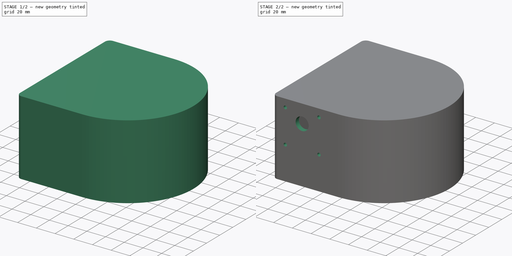
[diagram: build sequence overview — one tinted view per stage of 2, left to right]
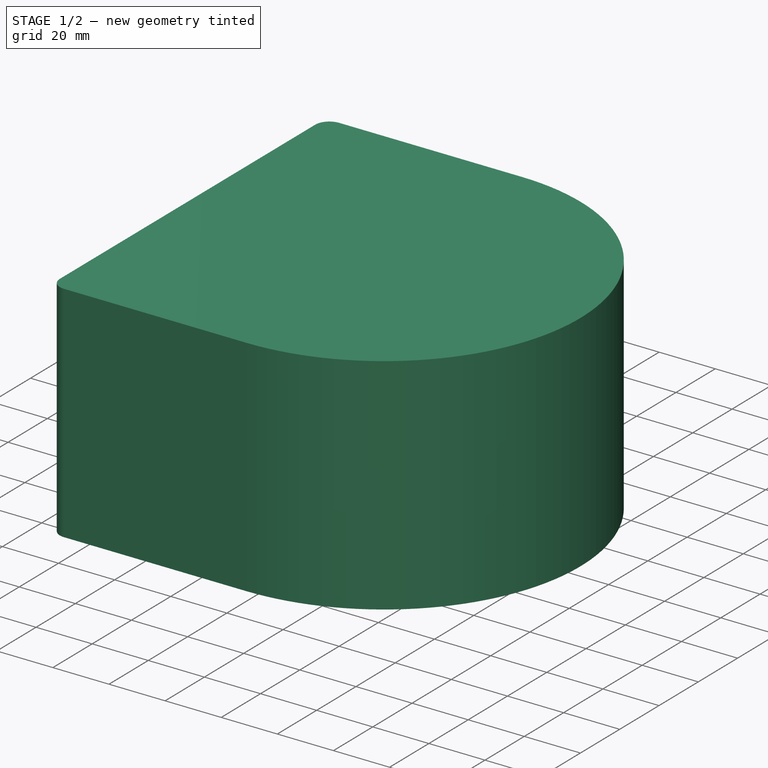
[diagram: stage 1 of 2 — iso view after this stage's code; geometry added in this stage tinted green]
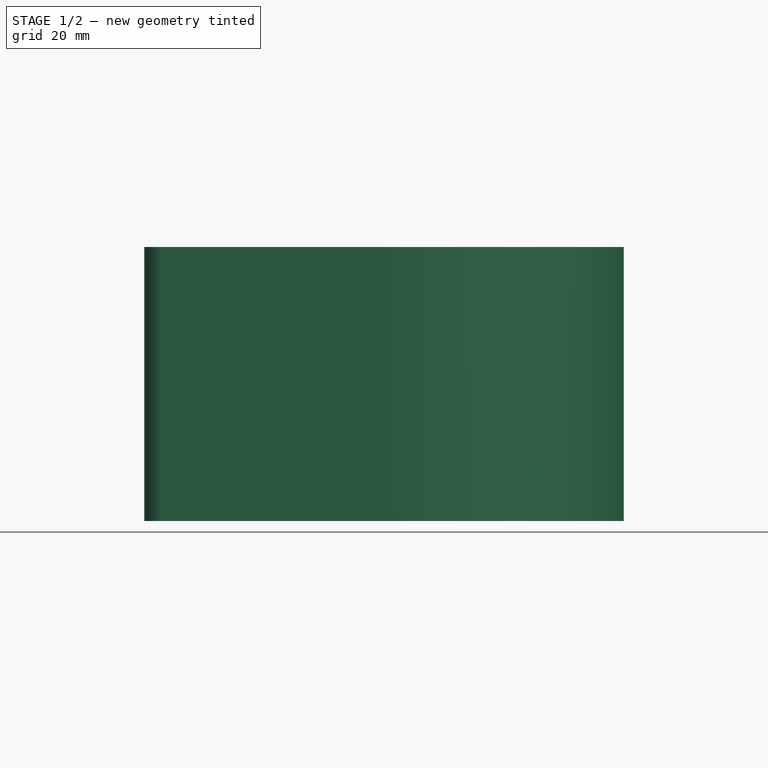
[diagram: stage 1 of 2 — front view after this stage's code; geometry added in this stage tinted green]
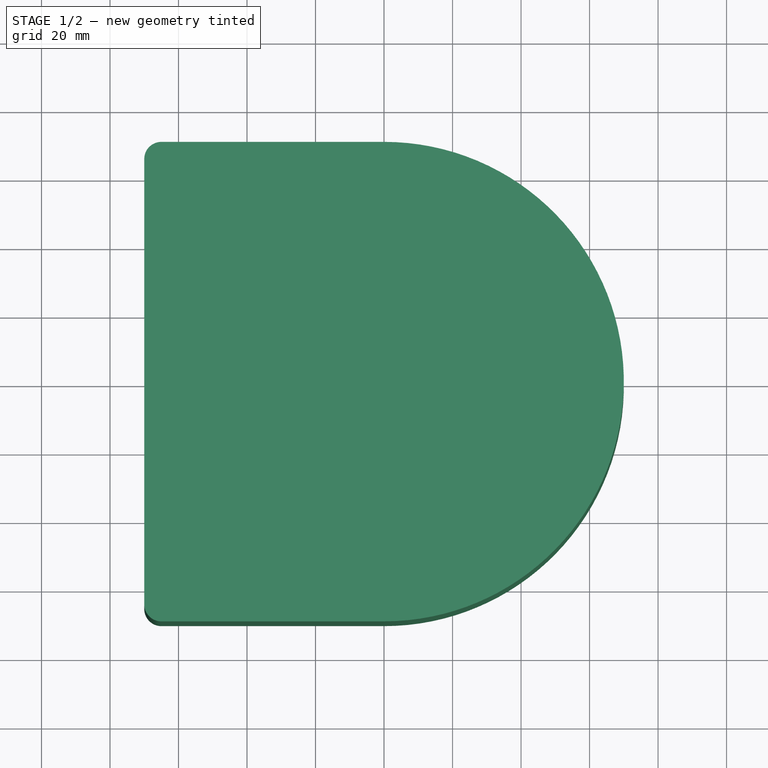
[diagram: stage 1 of 2 — top view after this stage's code; geometry added in this stage tinted green]
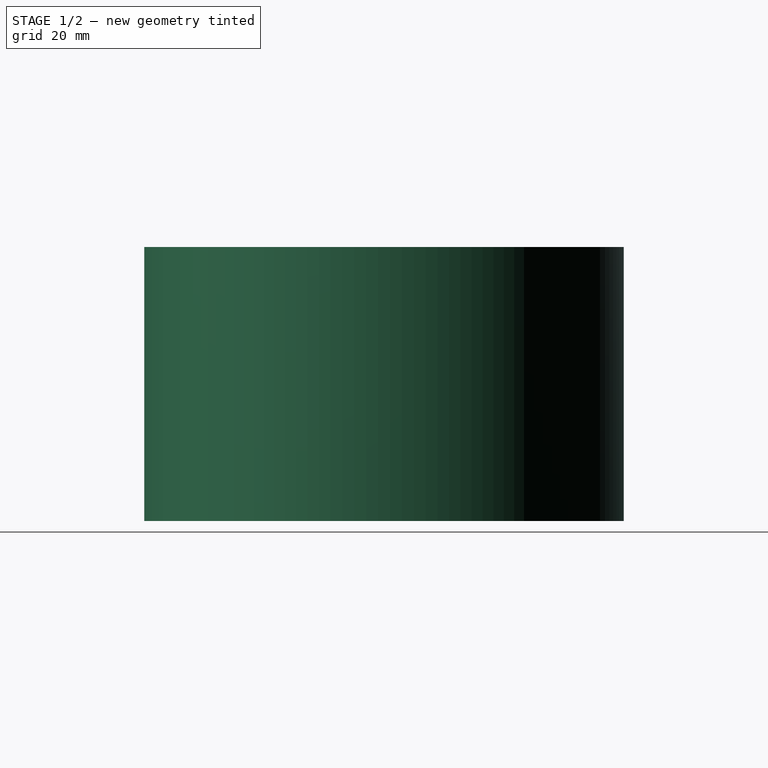
[diagram: stage 1 of 2 — right view after this stage's code; geometry added in this stage tinted green]
FCSTD DOCUMENT  (FreeCAD 0.18R16131 (Git))
Label: Frame
License: All rights reserved
LicenseURL: http://en.wikipedia.org/wiki/All_rights_reserved
objects: Sketcher::SketchObject×3, PartDesign::Pocket×2, PartDesign::Pad×1, PartDesign::Body×1
note: 10 computed .brp shape members not serialized (recipe doc carries the construction recipe); baked Part::Feature solids carry a one-line shape summary decoded from their .brp

FEATURE [Sketcher::SketchObject] Sketch
  MapMode = 5
  Support = -> [XY_Plane]
  sketch-geometry (6):
    g0: LineSegment StartX=-1.29e-14 StartY=70 StartZ=0 EndX=-65 EndY=70 EndZ=0
    g1: LineSegment StartX=-70 StartY=65 StartZ=0 EndX=-70 EndY=-65 EndZ=0
    g2: LineSegment StartX=-65 StartY=-70 StartZ=0 EndX=-1.42e-14 EndY=-70 EndZ=0
    g3: ArcOfCircle CenterX=-1.29e-14 CenterY=0 CenterZ=0 NormalX=0 NormalY=0 NormalZ=1 AngleXU=0 Radius=70 StartAngle=4.71239 EndAngle=7.85398
    g4: ArcOfCircle CenterX=-65 CenterY=65 CenterZ=0 NormalX=0 NormalY=0 NormalZ=1 AngleXU=0 Radius=5 StartAngle=1.5708 EndAngle=3.14159
    g5: ArcOfCircle CenterX=-65 CenterY=-65 CenterZ=0 NormalX=0 NormalY=0 NormalZ=1 AngleXU=0 Radius=5 StartAngle=3.14159 EndAngle=4.71239
  constraints (16):
    c: Vertical(g3,g3)
    c: Coincident(g3,g-1)
    c: Radius(g3) = 70
    c: Coincident(g2,g3)
    c: Coincident(g0,g3)
    c: Tangent(g0,g4) = -1.5708
    c: Tangent(g1,g4) = -1.5708
    c: Tangent(g1,g5) = -1.5708
    c: Tangent(g2,g5) = -1.5708
    c: DistanceX(g2,g2) = 65
    c: Vertical(g3,g2)
    c: DistanceX(g0,g0) = 65
    c: DistanceX(g1,g0) = 70
    c: Horizontal(g0,g0)
    c: Vertical(g1,g1)
    c: Horizontal(g2,g2)
FEATURE [PartDesign::Pad] Pad
  Length = 80
  Length2 = 100
  Profile = -> Sketch
  Type = 0
FEATURE [Sketcher::SketchObject] Sketch001
  ExternalGeometry = -> [Pad]
  MapMode = 5
  Placement = pos=(0,0,0) rot=(1,0,0;3.14159rad)
  Support = -> [Pad]
  sketch-geometry (6):
    g0: ArcOfCircle CenterX=5.91336e-05 CenterY=-5.4e-15 CenterZ=0 NormalX=0 NormalY=0 NormalZ=1 AngleXU=0 Radius=65 StartAngle=4.71239 EndAngle=7.85398
    g1: LineSegment StartX=-6.58657e-08 StartY=65 StartZ=0 EndX=-60 EndY=65 EndZ=0
    g2: LineSegment StartX=-65 StartY=60 StartZ=0 EndX=-65 EndY=-60 EndZ=0
    g3: LineSegment StartX=-60 StartY=-65 StartZ=0 EndX=0 EndY=-65 EndZ=0
    g4: ArcOfCircle CenterX=-60 CenterY=-60 CenterZ=0 NormalX=0 NormalY=0 NormalZ=1 AngleXU=0 Radius=5 StartAngle=3.14159 EndAngle=4.71239
    g5: ArcOfCircle CenterX=-60 CenterY=60 CenterZ=0 NormalX=0 NormalY=0 NormalZ=1 AngleXU=0 Radius=5 StartAngle=1.5708 EndAngle=3.14159
  constraints (16):
    c: DistanceY(g0,g-3) = 5
    c: DistanceY(g-3,g0) = 5
    c: Vertical(g0,g-3)
    c: Vertical(g-3,g0)
    c: Tangent(g2,g4) = -1.5708
    c: Tangent(g3,g4) = -1.5708
    c: Tangent(g1,g5) = -1.5708
    c: Tangent(g2,g5) = -1.5708
    c: DistanceY(g1,g-4) = 5
    c: DistanceY(g-6,g3) = 5
    c: Coincident(g3,g0)
    c: DistanceX(g-5,g2) = 5
    c: DistanceX(g-5,g2) = 5
    c: DistanceX(g1,g0) = 60
    c: DistanceX(g3,g0) = 60
    c: Parallel(g1,g-4)
FEATURE [PartDesign::Pocket] Pocket
  BaseFeature = -> Pad
  Length = 75
  Length2 = 100
  Profile = -> Sketch001
  Type = 0
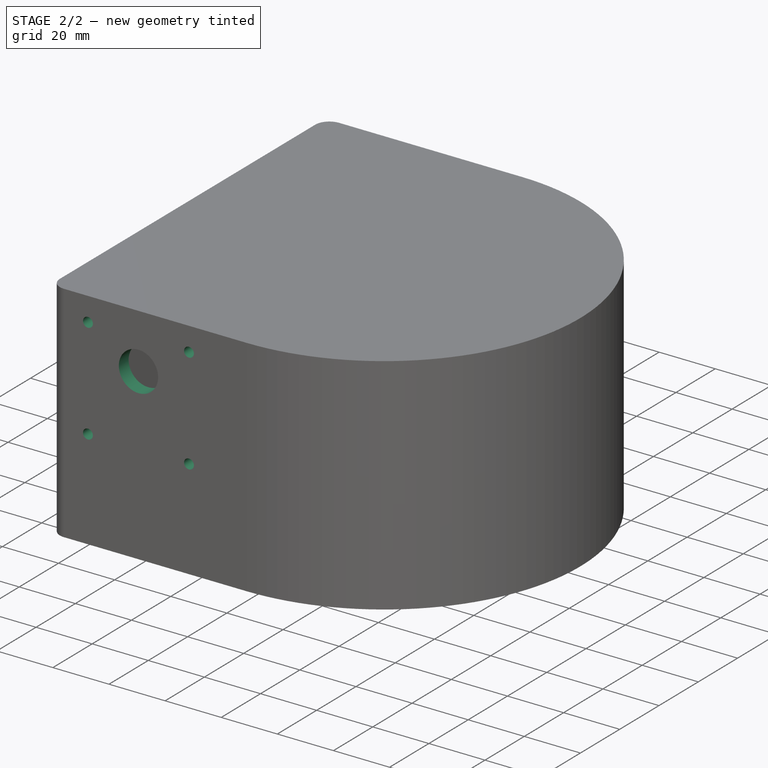
[diagram: stage 2 of 2 — iso view after this stage's code; geometry added in this stage tinted green]
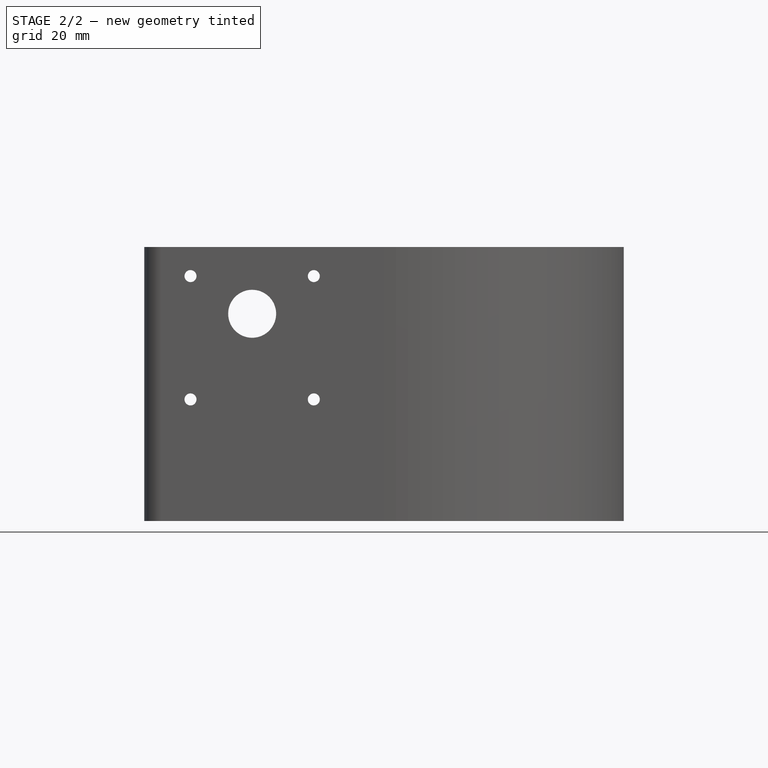
[diagram: stage 2 of 2 — front view after this stage's code; geometry added in this stage tinted green]
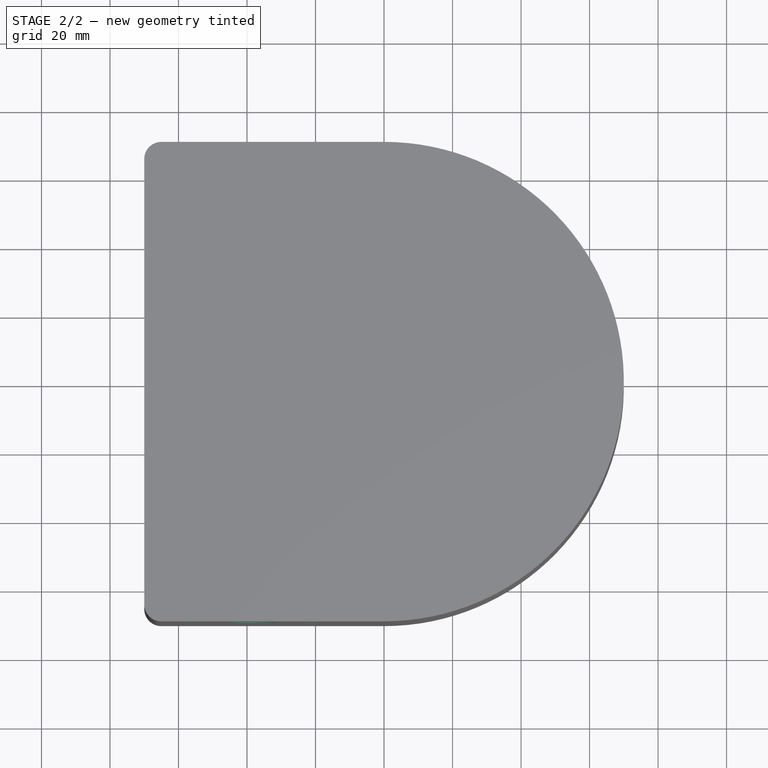
[diagram: stage 2 of 2 — top view after this stage's code; geometry added in this stage tinted green]
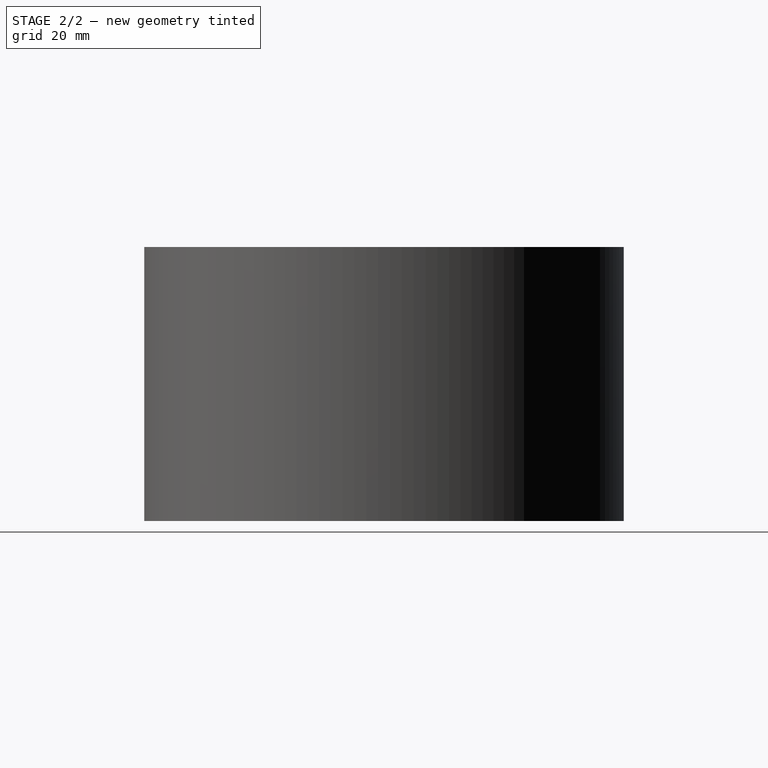
[diagram: stage 2 of 2 — right view after this stage's code; geometry added in this stage tinted green]
FEATURE [Sketcher::SketchObject] Sketch002
  ExternalGeometry = -> [Pocket]
  MapMode = 5
  Placement = pos=(0,-70,0) rot=(1,0,0;1.5708rad)
  Support = -> [Pocket]
  sketch-geometry (5):
    g0: Circle CenterX=-38.5 CenterY=60.5 CenterZ=0 NormalX=0 NormalY=0 NormalZ=1 AngleXU=0 Radius=7
    g1: Circle CenterX=-56.5 CenterY=71.5 CenterZ=0 NormalX=0 NormalY=0 NormalZ=1 AngleXU=0 Radius=1.75
    g2: Circle CenterX=-56.5 CenterY=35.5 CenterZ=0 NormalX=0 NormalY=0 NormalZ=1 AngleXU=0 Radius=1.75
    g3: Circle CenterX=-20.5 CenterY=71.5 CenterZ=0 NormalX=0 NormalY=0 NormalZ=1 AngleXU=0 Radius=1.75
    g4: Circle CenterX=-20.5 CenterY=35.5 CenterZ=0 NormalX=0 NormalY=0 NormalZ=1 AngleXU=0 Radius=1.75
  constraints (13):
    c: Radius(g0) = 7
    c: Radius(g1) = 1.75
    c: Radius(g2) = 1.75
    c: Radius(g3) = 1.75
    c: Radius(g4) = 1.75
    c: DistanceY(g4,g3) = 36
    c: DistanceX(g2,g4) = 36
    c: DistanceY(g2,g1) = 36
    c: DistanceX(g1,g3) = 36
    c: DistanceX(g1,g0) = 18
    c: DistanceY(g2,g0) = 25
    c: DistanceY(g0,g3) = 11
    c: DistanceX(g0,g4) = 18
FEATURE [PartDesign::Pocket] Pocket001
  BaseFeature = -> Pocket
  Length = 140
  Length2 = 100
  Profile = -> Sketch002
  Type = 0
FEATURE [PartDesign::Body] Body
  Group = -> [Sketch,Pad,Sketch001,Pocket,Sketch002,Pocket001]
  Origin = -> Origin
  Tip = -> Pocket001
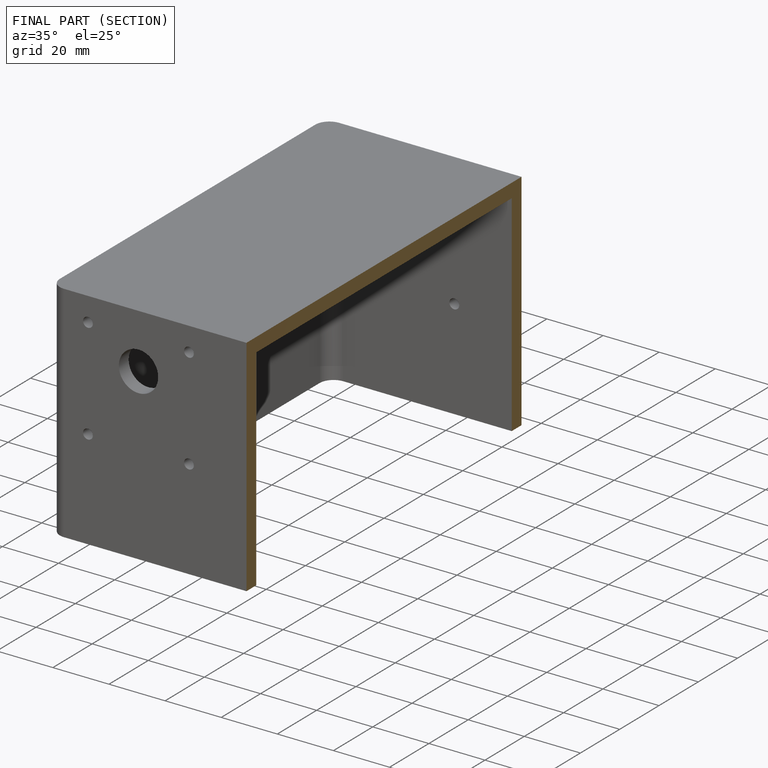
[diagram: finished part — half-section view (interior)]
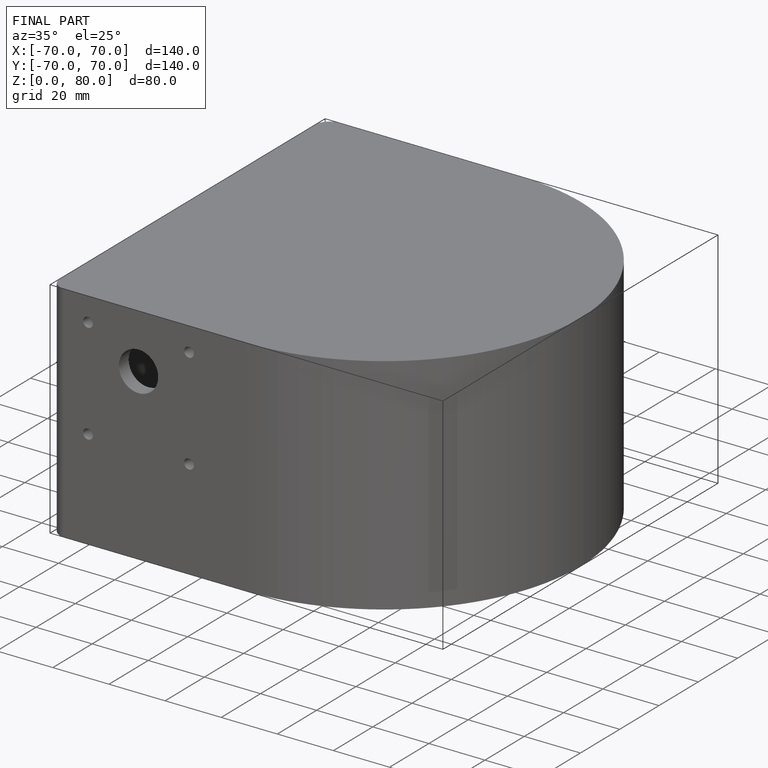
[diagram: finished part — iso view with bounding-box wireframe]
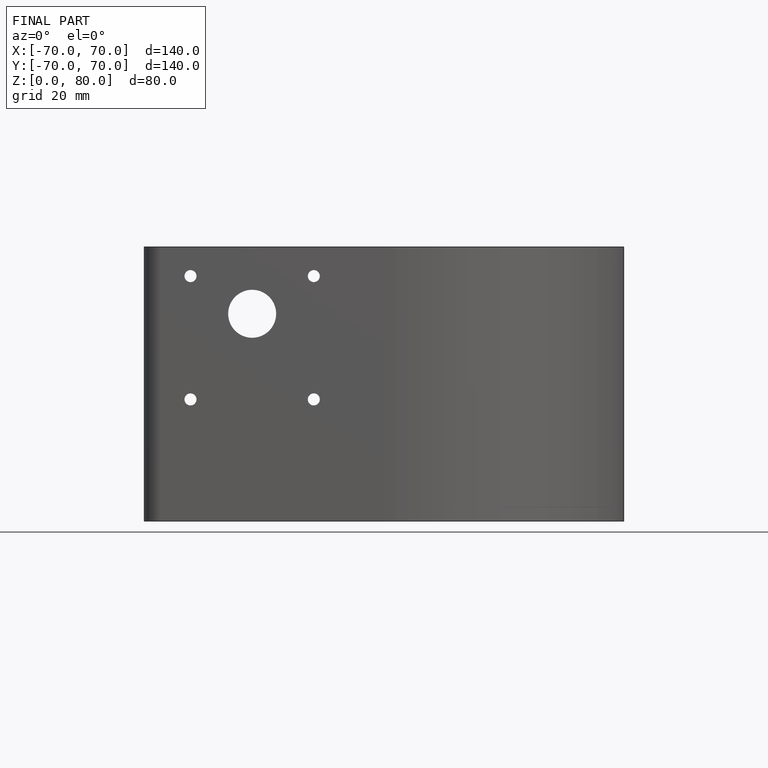
[diagram: finished part — front view with bounding-box wireframe]
